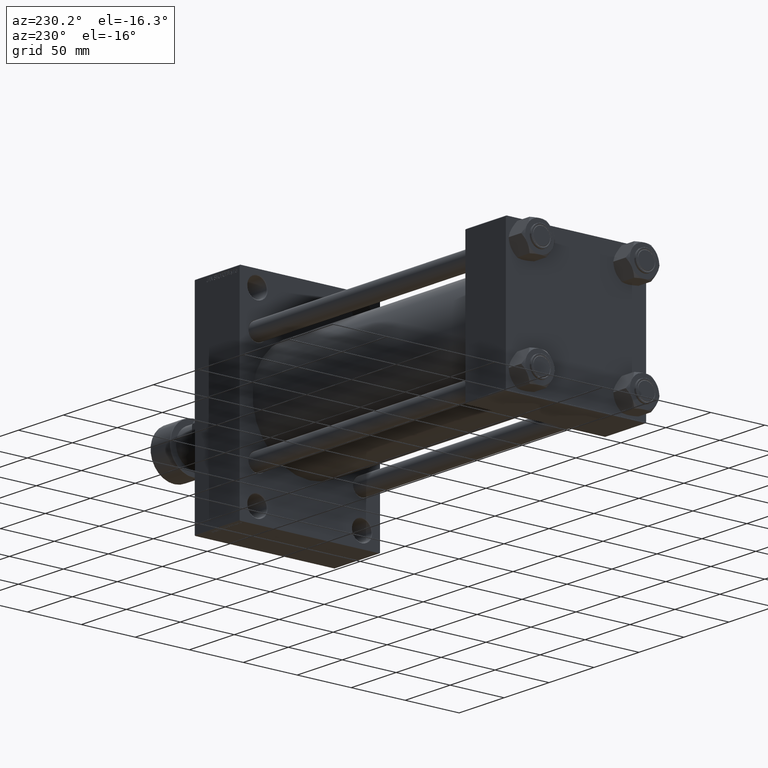
[diagram: clean part render]
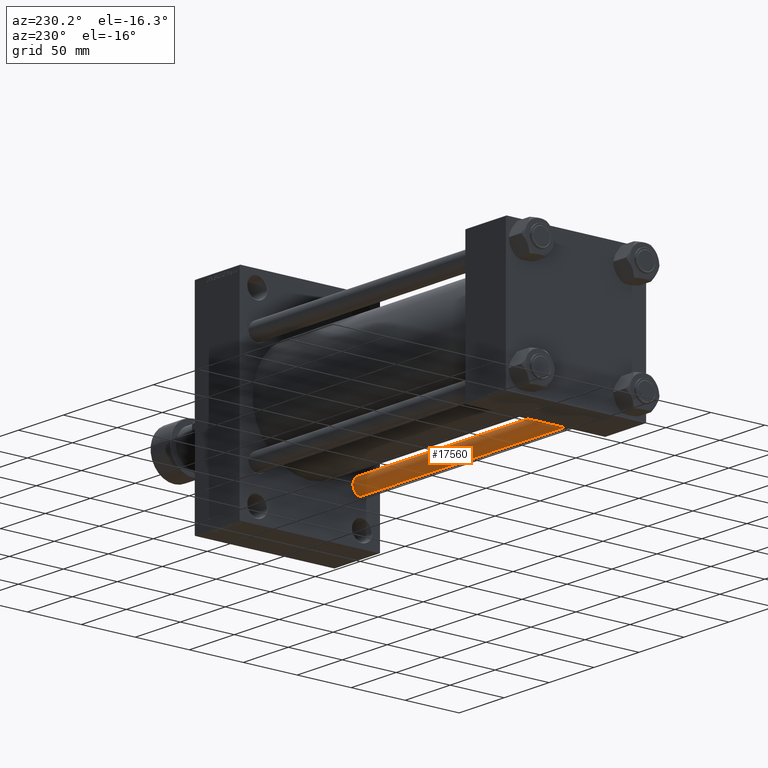
[diagram: same view with one face highlighted and labeled with its STEP entity id]
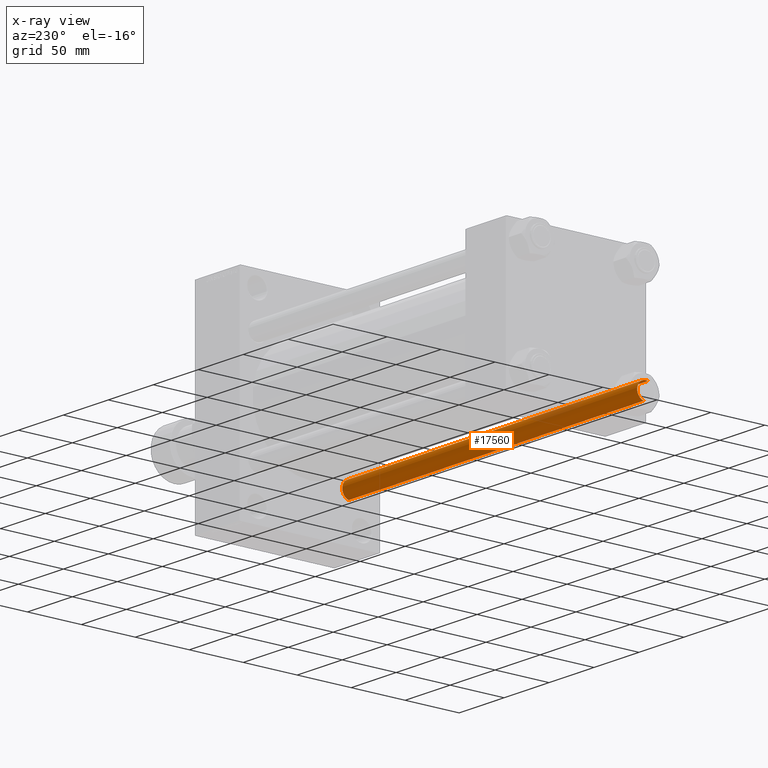
[diagram: x-ray of the same camera — body ghosted, the highlighted face saturated]
A machine part, auxiliary view. The second image highlights one B-rep face of the part: STEP entity #17560.
The next image is the same camera in x-ray: the body ghosted, the highlighted face saturated — about 5% of this face is hidden behind the body in this view.
In plain terms, the highlighted cylindrical surface (edge-blend (fillet) strip) has radius 8 mm, axis along (-1, 0, 0).
Its self-contained STEP definition (entity closure, byte-faithful):
#611 = DIRECTION ( 'NONE',  ( -0.000000000000000000, -0.000000000000000000, -1.000000000000000000 ) ) ;
#630 = CARTESIAN_POINT ( 'NONE',  ( 8.000000000000000000, 9.797174393178825657E-16, 329.0000000000000000 ) ) ;
#2257 = CARTESIAN_POINT ( 'NONE',  ( 0.000000000000000000, 0.000000000000000000, 328.5000000000000000 ) ) ;
#2433 = CARTESIAN_POINT ( 'NONE',  ( 8.000000000000000000, 9.797174393178825657E-16, 328.5000000000000000 ) ) ;
#4260 = CYLINDRICAL_SURFACE ( 'NONE', #47650, 8.000000000000000000 ) ;
#6508 = DIRECTION ( 'NONE',  ( -0.000000000000000000, -0.000000000000000000, -1.000000000000000000 ) ) ;
#7916 = LINE ( 'NONE', #630, #40870 ) ;
#8730 = ORIENTED_EDGE ( 'NONE', *, *, #24337, .T. ) ;
#8917 = VERTEX_POINT ( 'NONE', #25176 ) ;
#10331 = CARTESIAN_POINT ( 'NONE',  ( 0.000000000000000000, 0.000000000000000000, 0.4999999999998894218 ) ) ;
#12173 = ORIENTED_EDGE ( 'NONE', *, *, #22339, .F. ) ;
#12956 = ORIENTED_EDGE ( 'NONE', *, *, #21900, .T. ) ;
#13395 = VECTOR ( 'NONE', #6508, 1000.000000000000000 ) ;
#14235 = DIRECTION ( 'NONE',  ( -0.000000000000000000, -0.000000000000000000, 1.000000000000000000 ) ) ;
#14355 = CARTESIAN_POINT ( 'NONE',  ( -8.000000000000000000, 0.000000000000000000, 328.5000000000000000 ) ) ;
#14844 = CARTESIAN_POINT ( 'NONE',  ( -8.000000000000000000, 0.000000000000000000, 0.4999999999998894218 ) ) ;
#16824 = VERTEX_POINT ( 'NONE', #14844 ) ;
#17560 = ADVANCED_FACE ( 'NONE', ( #22734 ), #4260, .T. ) ;
#18360 = DIRECTION ( 'NONE',  ( 1.000000000000000000, 0.000000000000000000, 0.000000000000000000 ) ) ;
#19559 = CARTESIAN_POINT ( 'NONE',  ( 0.000000000000000000, 0.000000000000000000, 329.0000000000000000 ) ) ;
#20570 = AXIS2_PLACEMENT_3D ( 'NONE', #2257, #32187, #47024 ) ;
#21900 = EDGE_CURVE ( 'NONE', #23770, #23834, #22158, .T. ) ;
#22158 = CIRCLE ( 'NONE', #20570, 8.000000000000000000 ) ;
#22339 = EDGE_CURVE ( 'NONE', #23770, #8917, #7916, .T. ) ;
#22734 = FACE_OUTER_BOUND ( 'NONE', #29482, .T. ) ;
#23770 = VERTEX_POINT ( 'NONE', #2433 ) ;
#23834 = VERTEX_POINT ( 'NONE', #14355 ) ;
#24337 = EDGE_CURVE ( 'NONE', #16824, #8917, #31578, .T. ) ;
#24565 = AXIS2_PLACEMENT_3D ( 'NONE', #10331, #14235, #18360 ) ;
#25176 = CARTESIAN_POINT ( 'NONE',  ( 8.000000000000000000, 9.797174393178825657E-16, 0.4999999999998894218 ) ) ;
#26386 = DIRECTION ( 'NONE',  ( -1.000000000000000000, 0.000000000000000000, 0.000000000000000000 ) ) ;
#28641 = LINE ( 'NONE', #39843, #13395 ) ;
#29482 = EDGE_LOOP ( 'NONE', ( #12173, #12956, #35524, #8730 ) ) ;
#31578 = CIRCLE ( 'NONE', #24565, 8.000000000000000000 ) ;
#32187 = DIRECTION ( 'NONE',  ( 0.000000000000000000, 0.000000000000000000, -1.000000000000000000 ) ) ;
#34134 = EDGE_CURVE ( 'NONE', #23834, #16824, #28641, .T. ) ;
#35524 = ORIENTED_EDGE ( 'NONE', *, *, #34134, .T. ) ;
#39843 = CARTESIAN_POINT ( 'NONE',  ( -8.000000000000000000, 0.000000000000000000, 329.0000000000000000 ) ) ;
#40870 = VECTOR ( 'NONE', #44442, 1000.000000000000000 ) ;
#44442 = DIRECTION ( 'NONE',  ( -0.000000000000000000, -0.000000000000000000, -1.000000000000000000 ) ) ;
#47024 = DIRECTION ( 'NONE',  ( 1.000000000000000000, 0.000000000000000000, 0.000000000000000000 ) ) ;
#47650 = AXIS2_PLACEMENT_3D ( 'NONE', #19559, #611, #26386 ) ;